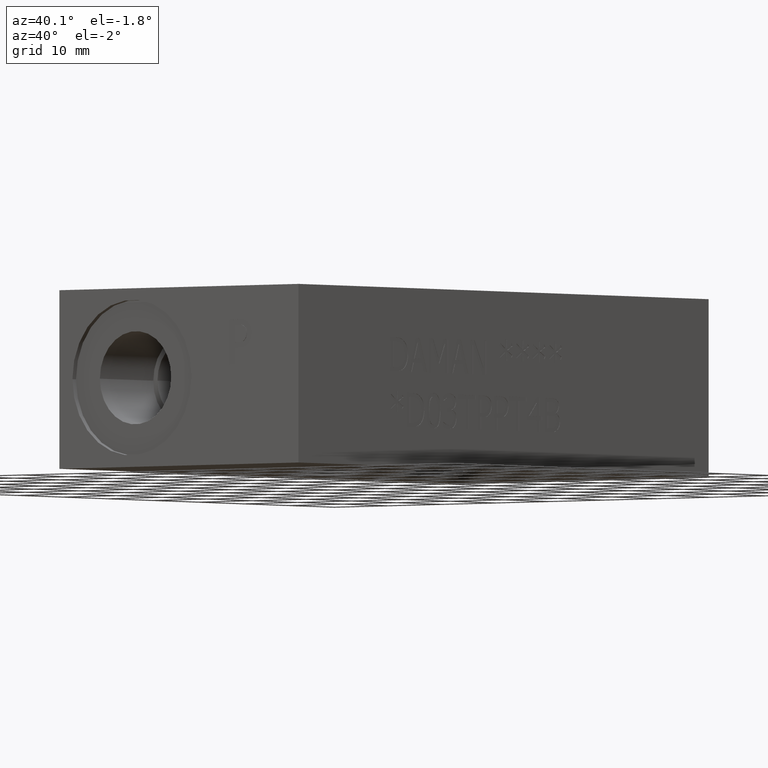
[diagram: clean part render]
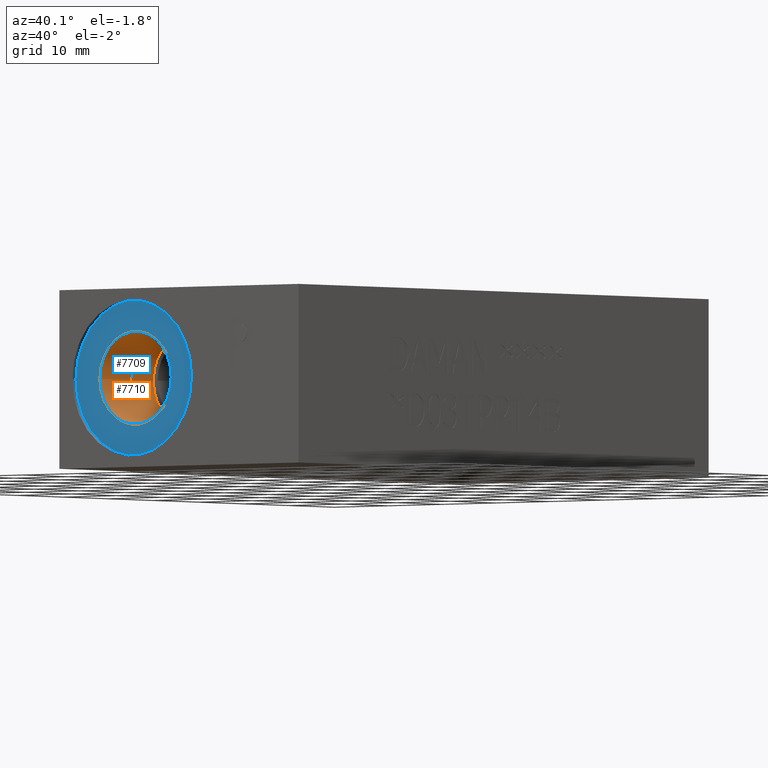
[diagram: same view with the hole feature highlighted: cylindrical wall and planar end face, labeled with their STEP entity ids]
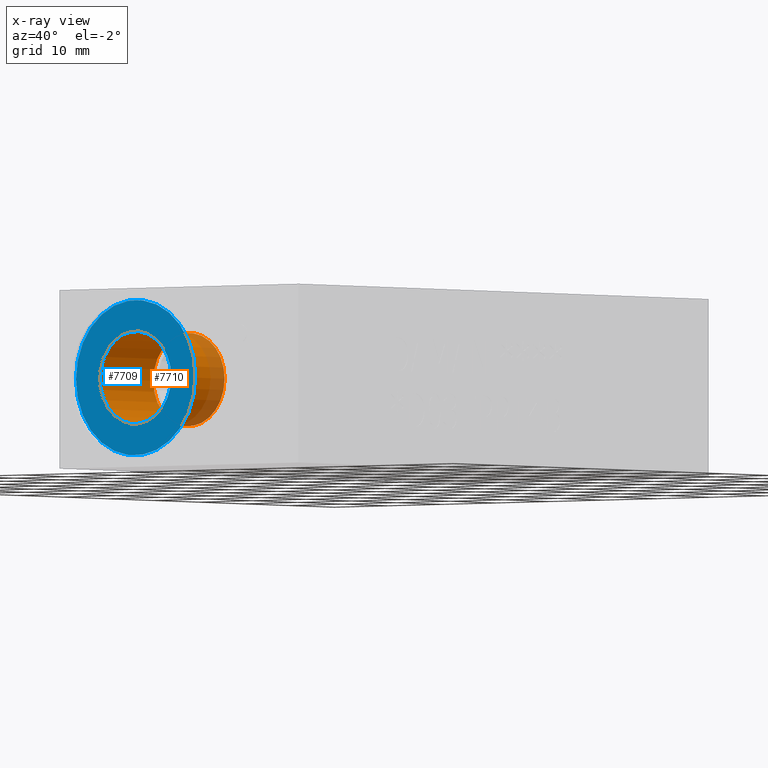
[diagram: x-ray of the same camera — body ghosted, the hole faces saturated]
A machine part, auxiliary view. The highlighted faces form one hole feature of diameter 13.2588 mm: the cylindrical wall (entity #7710, orange) and its adjacent planar end face (entity #7709, blue) — they share a circular edge in the B-rep.
The next image is the same camera in x-ray (body ghosted, the hole faces saturated) — the bore reads through the body.
Wall:
#29=CYLINDRICAL_SURFACE('',#8071,6.6294);
#84=CIRCLE('',#8070,6.6294);
#85=CIRCLE('',#8072,6.6294);
#795=FACE_OUTER_BOUND('',#1232,.T.);
#1232=EDGE_LOOP('',(#6611,#6612,#6613,#6614));
#2073=LINE('',#12813,#2891);
#2891=VECTOR('',#9556,6.6294);
#3580=VERTEX_POINT('',#12809);
#3581=VERTEX_POINT('',#12812);
#4605=EDGE_CURVE('',#3580,#3580,#84,.T.);
#4606=EDGE_CURVE('',#3580,#3581,#2073,.T.);
#4607=EDGE_CURVE('',#3581,#3581,#85,.T.);
#6611=ORIENTED_EDGE('',*,*,#4605,.F.);
#6612=ORIENTED_EDGE('',*,*,#4606,.T.);
#6613=ORIENTED_EDGE('',*,*,#4607,.T.);
#6614=ORIENTED_EDGE('',*,*,#4606,.F.);
#7710=ADVANCED_FACE('',(#795),#29,.F.);
#8070=AXIS2_PLACEMENT_3D('',#12810,#9552,#9553);
#8071=AXIS2_PLACEMENT_3D('',#12811,#9554,#9555);
#8072=AXIS2_PLACEMENT_3D('',#12814,#9557,#9558);
#9552=DIRECTION('center_axis',(0.,1.,0.));
#9553=DIRECTION('ref_axis',(1.,0.,0.));
#9554=DIRECTION('center_axis',(0.,1.,0.));
#9555=DIRECTION('ref_axis',(1.,0.,0.));
#9556=DIRECTION('',(0.,1.,0.));
#9557=DIRECTION('center_axis',(0.,1.,0.));
#9558=DIRECTION('ref_axis',(1.,0.,0.));
#12809=CARTESIAN_POINT('',(6.858,0.7874,12.7));
#12810=CARTESIAN_POINT('Origin',(13.4874,0.7874,12.7));
#12811=CARTESIAN_POINT('Origin',(13.4874,6.6802,12.7));
#12812=CARTESIAN_POINT('',(6.858,12.573,12.7));
#12813=CARTESIAN_POINT('',(6.858,6.6802,12.7));
#12814=CARTESIAN_POINT('Origin',(13.4874,12.573,12.7));
End face:
#83=CIRCLE('',#8068,11.0617);
#84=CIRCLE('',#8070,6.6294);
#144=FACE_BOUND('',#1231,.T.);
#794=FACE_OUTER_BOUND('',#1230,.T.);
#1230=EDGE_LOOP('',(#6609));
#1231=EDGE_LOOP('',(#6610));
#3579=VERTEX_POINT('',#12805);
#3580=VERTEX_POINT('',#12809);
#4604=EDGE_CURVE('',#3579,#3579,#83,.T.);
#4605=EDGE_CURVE('',#3580,#3580,#84,.T.);
#6609=ORIENTED_EDGE('',*,*,#4604,.F.);
#6610=ORIENTED_EDGE('',*,*,#4605,.T.);
#6994=PLANE('',#8069);
#7709=ADVANCED_FACE('',(#794,#144),#6994,.F.);
#8068=AXIS2_PLACEMENT_3D('',#12807,#9548,#9549);
#8069=AXIS2_PLACEMENT_3D('',#12808,#9550,#9551);
#8070=AXIS2_PLACEMENT_3D('',#12810,#9552,#9553);
#9548=DIRECTION('center_axis',(0.,1.,0.));
#9549=DIRECTION('ref_axis',(1.,0.,0.));
#9550=DIRECTION('center_axis',(0.,1.,0.));
#9551=DIRECTION('ref_axis',(0.,0.,1.));
#9552=DIRECTION('center_axis',(0.,1.,0.));
#9553=DIRECTION('ref_axis',(1.,0.,0.));
#12805=CARTESIAN_POINT('',(2.4257,0.7874,12.7));
#12807=CARTESIAN_POINT('Origin',(13.4874,0.7874,12.7));
#12808=CARTESIAN_POINT('Origin',(20.1168,0.7874,12.7));
#12809=CARTESIAN_POINT('',(6.858,0.7874,12.7));
#12810=CARTESIAN_POINT('Origin',(13.4874,0.7874,12.7));